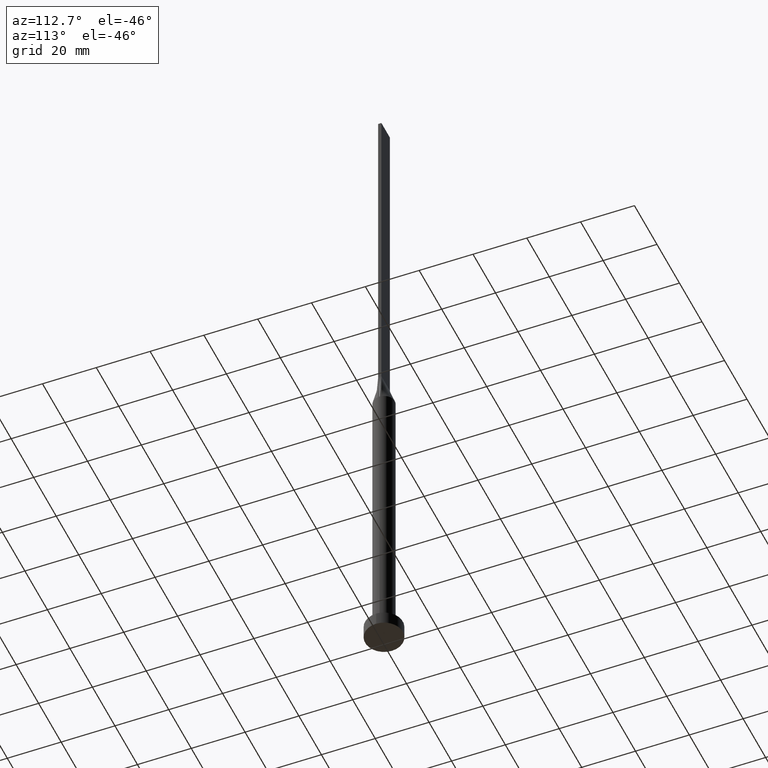
[diagram: clean part render]
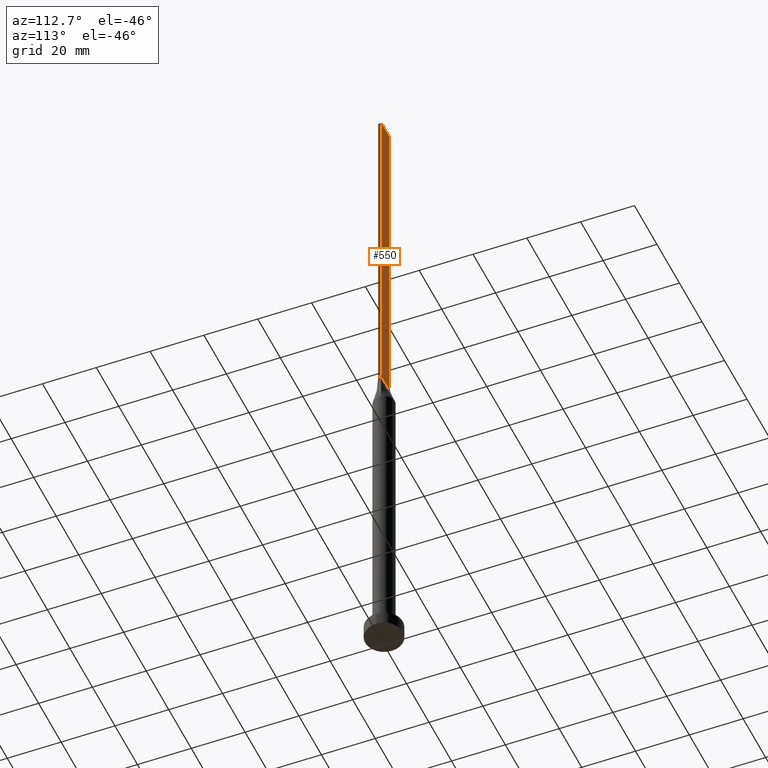
[diagram: same view with one face highlighted and labeled with its STEP entity id]
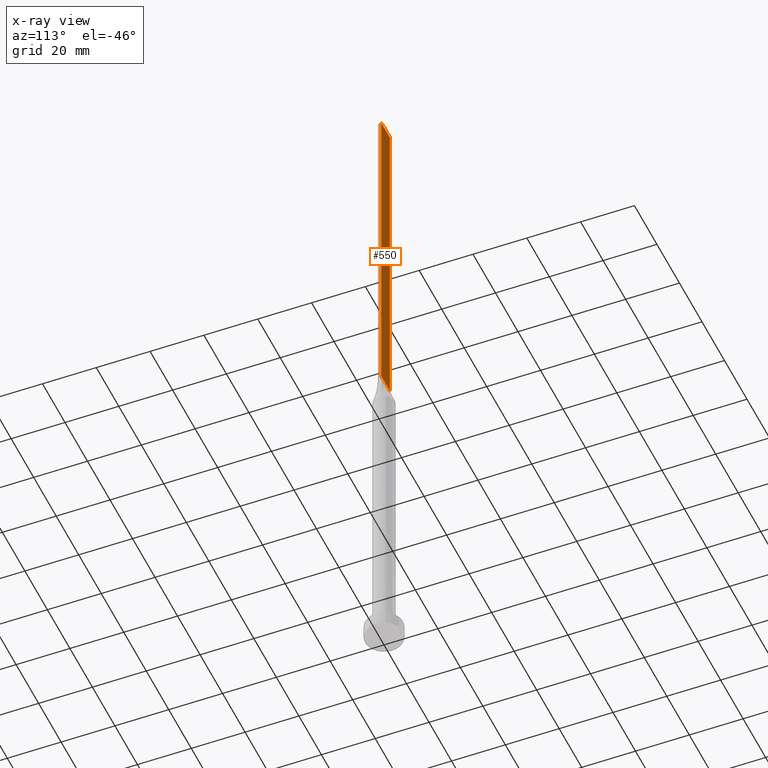
[diagram: x-ray of the same camera — body ghosted, the highlighted face saturated]
A machine part, auxiliary view. The second image highlights one B-rep face of the part: STEP entity #550.
The next image is the same camera in x-ray: the body ghosted, the highlighted face saturated — about 0% of this face is hidden behind the body in this view.
In plain terms, the highlighted planar face has unit normal (0, -1, 0).
Its self-contained STEP definition (entity closure, byte-faithful):
#19 = LINE ( 'NONE', #476, #260 ) ;
#20 = CARTESIAN_POINT ( 'NONE',  ( 3.750000000000000000, 0.6000000000000001998, 250.0000000000000000 ) ) ;
#65 = EDGE_CURVE ( 'NONE', #237, #145, #19, .T. ) ;
#68 = DIRECTION ( 'NONE',  ( 0.000000000000000000, -1.000000000000000000, 0.000000000000000000 ) ) ;
#116 = EDGE_LOOP ( 'NONE', ( #531, #206, #453, #446 ) ) ;
#145 = VERTEX_POINT ( 'NONE', #344 ) ;
#146 = LINE ( 'NONE', #292, #147 ) ;
#147 = VECTOR ( 'NONE', #477, 1000.000000000000000 ) ;
#156 = DIRECTION ( 'NONE',  ( 0.000000000000000000, -0.000000000000000000, -1.000000000000000000 ) ) ;
#179 = CARTESIAN_POINT ( 'NONE',  ( -3.750000000000000000, 0.6000000000000001998, 250.0000000000000000 ) ) ;
#206 = ORIENTED_EDGE ( 'NONE', *, *, #436, .F. ) ;
#219 = VECTOR ( 'NONE', #537, 1000.000000000000000 ) ;
#237 = VERTEX_POINT ( 'NONE', #466 ) ;
#243 = DIRECTION ( 'NONE',  ( -0.000000000000000000, -0.000000000000000000, -1.000000000000000000 ) ) ;
#260 = VECTOR ( 'NONE', #243, 1000.000000000000000 ) ;
#264 = EDGE_CURVE ( 'NONE', #145, #543, #146, .T. ) ;
#278 = LINE ( 'NONE', #365, #219 ) ;
#281 = DIRECTION ( 'NONE',  ( -0.000000000000000000, -0.000000000000000000, -1.000000000000000000 ) ) ;
#292 = CARTESIAN_POINT ( 'NONE',  ( -3.750000000000000000, 0.6000000000000001998, 125.0000000000000000 ) ) ;
#301 = FACE_OUTER_BOUND ( 'NONE', #116, .T. ) ;
#344 = CARTESIAN_POINT ( 'NONE',  ( 3.750000000000000000, 0.6000000000000001998, 125.0000000000000000 ) ) ;
#348 = PLANE ( 'NONE',  #373 ) ;
#365 = CARTESIAN_POINT ( 'NONE',  ( 3.750000000000000000, 0.6000000000000001998, 250.0000000000000000 ) ) ;
#373 = AXIS2_PLACEMENT_3D ( 'NONE', #20, #68, #156 ) ;
#436 = EDGE_CURVE ( 'NONE', #459, #543, #547, .T. ) ;
#443 = VECTOR ( 'NONE', #281, 1000.000000000000000 ) ;
#446 = ORIENTED_EDGE ( 'NONE', *, *, #65, .T. ) ;
#453 = ORIENTED_EDGE ( 'NONE', *, *, #471, .F. ) ;
#459 = VERTEX_POINT ( 'NONE', #179 ) ;
#466 = CARTESIAN_POINT ( 'NONE',  ( 3.750000000000000000, 0.6000000000000001998, 250.0000000000000000 ) ) ;
#471 = EDGE_CURVE ( 'NONE', #237, #459, #278, .T. ) ;
#475 = CARTESIAN_POINT ( 'NONE',  ( -3.750000000000000000, 0.6000000000000001998, 125.0000000000000000 ) ) ;
#476 = CARTESIAN_POINT ( 'NONE',  ( 3.750000000000000000, 0.6000000000000001998, 250.0000000000000000 ) ) ;
#477 = DIRECTION ( 'NONE',  ( -1.000000000000000000, -0.000000000000000000, -0.000000000000000000 ) ) ;
#531 = ORIENTED_EDGE ( 'NONE', *, *, #264, .T. ) ;
#537 = DIRECTION ( 'NONE',  ( -1.000000000000000000, 0.000000000000000000, 0.000000000000000000 ) ) ;
#543 = VERTEX_POINT ( 'NONE', #475 ) ;
#544 = CARTESIAN_POINT ( 'NONE',  ( -3.750000000000000000, 0.6000000000000001998, 250.0000000000000000 ) ) ;
#547 = LINE ( 'NONE', #544, #443 ) ;
#550 = ADVANCED_FACE ( 'NONE', ( #301 ), #348, .F. ) ;